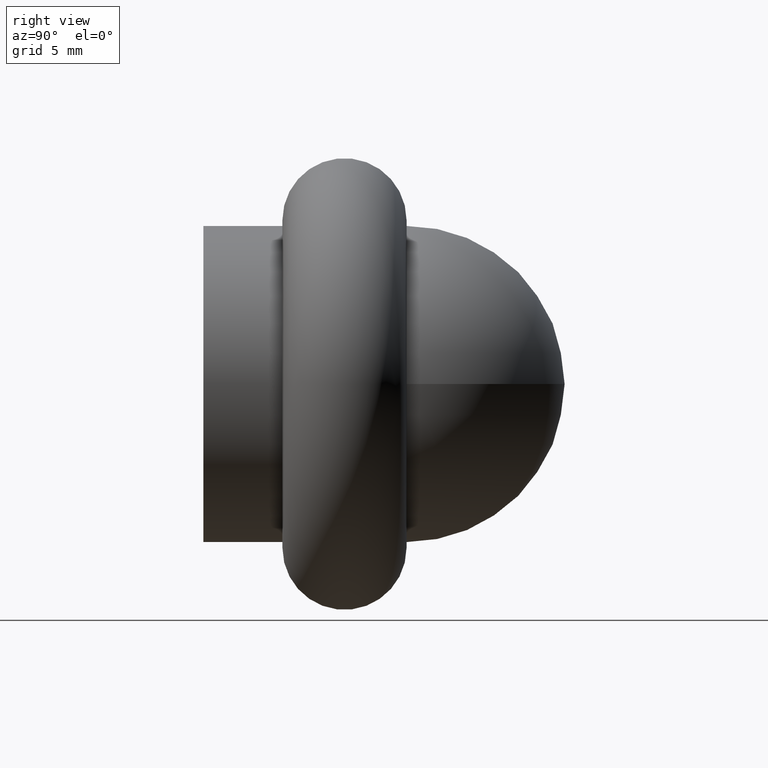
[diagram: clean part render]
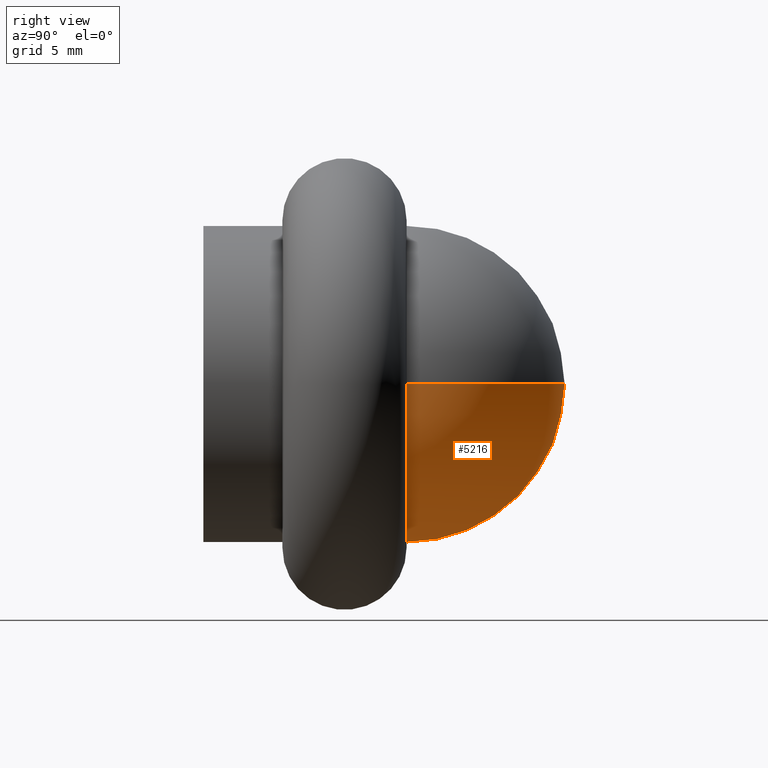
[diagram: same view with one face highlighted and labeled with its STEP entity id]
A machine part, right view. The second image highlights one B-rep face of the part: STEP entity #5216.
In plain terms, the highlighted spherical surface has radius 7 mm.
Its self-contained STEP definition (entity closure, byte-faithful):
#761 = CARTESIAN_POINT ( 'NONE',  ( 4.286263797015736100E-016, 16.00000000000000000, 0.0000000000000000000 ) ) ;
#1296 = CIRCLE ( 'NONE', #7474, 6.999999999999999100 ) ;
#2393 = DIRECTION ( 'NONE',  ( 1.000000000000000000, 0.0000000000000000000, -1.224646799147353200E-016 ) ) ;
#2446 = DIRECTION ( 'NONE',  ( 1.224646799147353200E-016, -0.0000000000000000000, 1.000000000000000000 ) ) ;
#2681 = CARTESIAN_POINT ( 'NONE',  ( 0.0000000000000000000, 9.000000000000001800, 0.0000000000000000000 ) ) ;
#3992 = CARTESIAN_POINT ( 'NONE',  ( 0.0000000000000000000, 9.000000000000001800, 0.0000000000000000000 ) ) ;
#4276 = DIRECTION ( 'NONE',  ( 1.000000000000000000, 0.0000000000000000000, 0.0000000000000000000 ) ) ;
#4289 = DIRECTION ( 'NONE',  ( -0.0000000000000000000, -1.000000000000000000, -0.0000000000000000000 ) ) ;
#4405 = CARTESIAN_POINT ( 'NONE',  ( 0.0000000000000000000, 9.000000000000001800, 0.0000000000000000000 ) ) ;
#4566 = DIRECTION ( 'NONE',  ( 0.0000000000000000000, 0.0000000000000000000, 1.000000000000000000 ) ) ;
#4937 = DIRECTION ( 'NONE',  ( -1.000000000000000000, 0.0000000000000000000, 0.0000000000000000000 ) ) ;
#5216 = ADVANCED_FACE ( 'NONE', ( #5394 ), #6277, .T. ) ;
#5238 = CARTESIAN_POINT ( 'NONE',  ( -6.999999999999999100, 8.999999999999976900, 8.572527594031473200E-016 ) ) ;
#5394 = FACE_OUTER_BOUND ( 'NONE', #10017, .T. ) ;
#5568 = VERTEX_POINT ( 'NONE', #11553 ) ;
#5647 = EDGE_CURVE ( 'NONE', #8725, #10805, #9962, .T. ) ;
#6130 = ORIENTED_EDGE ( 'NONE', *, *, #9181, .F. ) ;
#6277 = SPHERICAL_SURFACE ( 'NONE', #7964, 6.999999999999999100 ) ;
#6669 = ORIENTED_EDGE ( 'NONE', *, *, #9034, .T. ) ;
#7474 = AXIS2_PLACEMENT_3D ( 'NONE', #3992, #10384, #4937 ) ;
#7529 = AXIS2_PLACEMENT_3D ( 'NONE', #2681, #2446, #2393 ) ;
#7964 = AXIS2_PLACEMENT_3D ( 'NONE', #4405, #4566, #4276 ) ;
#7979 = ORIENTED_EDGE ( 'NONE', *, *, #5647, .F. ) ;
#8725 = VERTEX_POINT ( 'NONE', #761 ) ;
#9034 = EDGE_CURVE ( 'NONE', #8725, #5568, #1296, .T. ) ;
#9181 = EDGE_CURVE ( 'NONE', #10805, #5568, #9996, .T. ) ;
#9303 = AXIS2_PLACEMENT_3D ( 'NONE', #9787, #4289, #10653 ) ;
#9787 = CARTESIAN_POINT ( 'NONE',  ( 0.0000000000000000000, 8.999999999999976900, 0.0000000000000000000 ) ) ;
#9962 = CIRCLE ( 'NONE', #7529, 6.999999999999999100 ) ;
#9996 = CIRCLE ( 'NONE', #9303, 7.000000000000000000 ) ;
#10017 = EDGE_LOOP ( 'NONE', ( #7979, #6669, #6130 ) ) ;
#10384 = DIRECTION ( 'NONE',  ( 0.0000000000000000000, 0.0000000000000000000, -1.000000000000000000 ) ) ;
#10653 = DIRECTION ( 'NONE',  ( 0.0000000000000000000, 0.0000000000000000000, -1.000000000000000000 ) ) ;
#10805 = VERTEX_POINT ( 'NONE', #5238 ) ;
#11553 = CARTESIAN_POINT ( 'NONE',  ( 6.999999999999999100, 8.999999999999976900, 0.0000000000000000000 ) ) ;